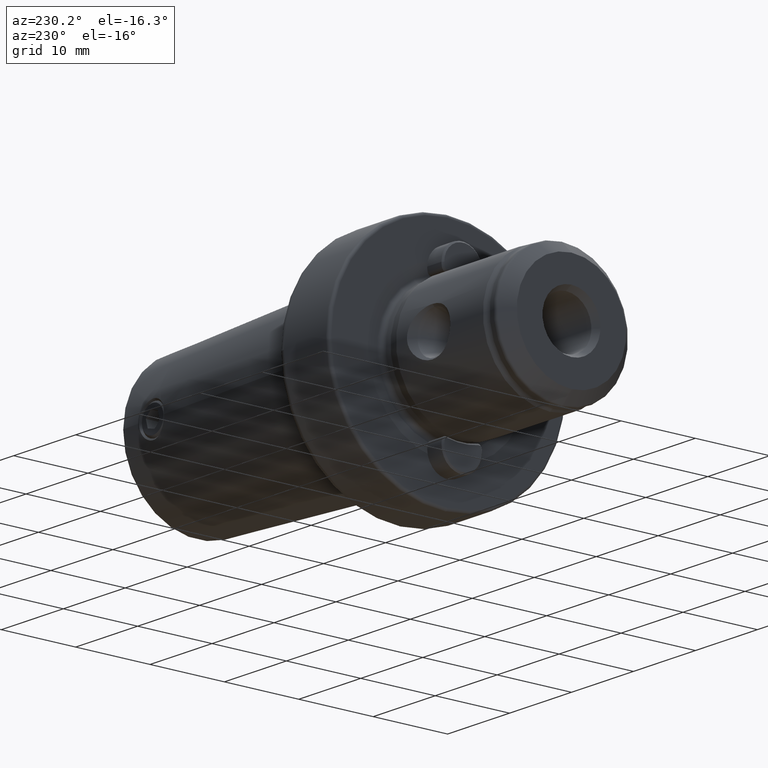
[diagram: clean part render]
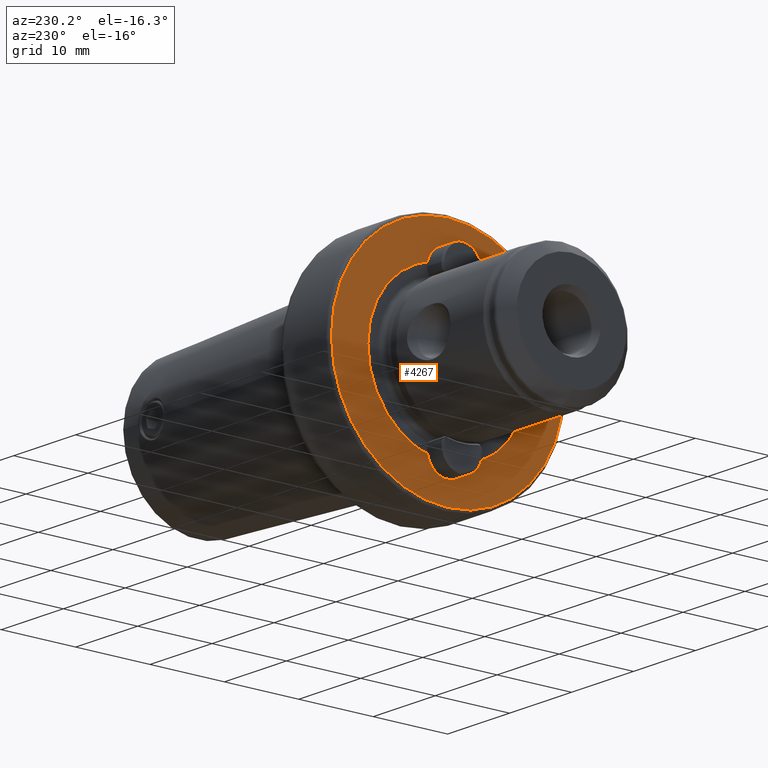
[diagram: same view with one face highlighted and labeled with its STEP entity id]
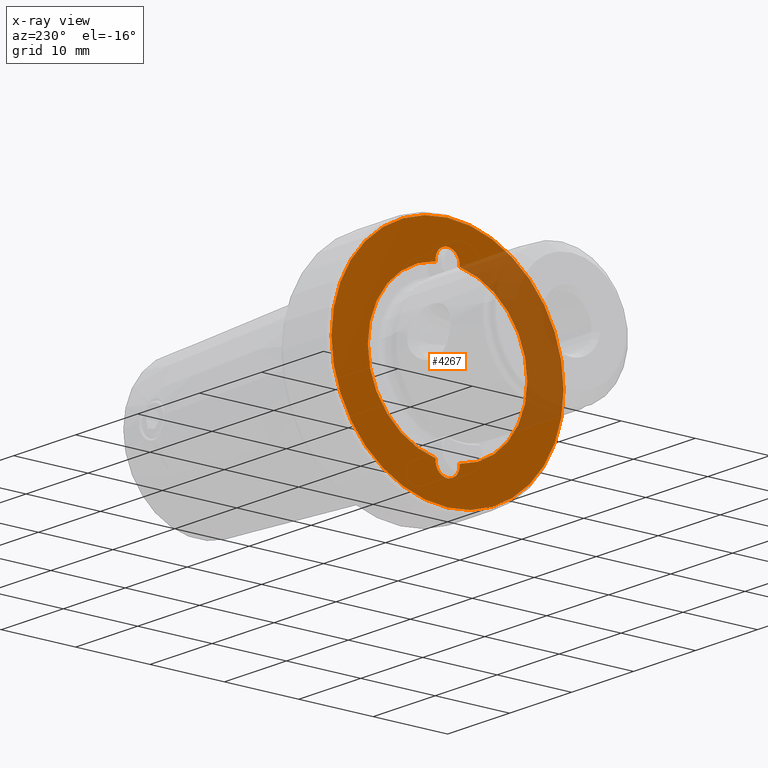
[diagram: x-ray of the same camera — body ghosted, the highlighted face saturated]
A machine part, auxiliary view. The second image highlights one B-rep face of the part: STEP entity #4267.
The next image is the same camera in x-ray: the body ghosted, the highlighted face saturated — about 25% of this face is hidden behind the body in this view.
In plain terms, the highlighted planar face has unit normal (1, 0, 0).
Its self-contained STEP definition (entity closure, byte-faithful):
#56 = CARTESIAN_POINT ( 'NONE',  ( 0.0000000000000000000, -1.580013975531185700, -10.59789716953961600 ) ) ;
#103 = CARTESIAN_POINT ( 'NONE',  ( 0.0000000000000000000, 0.0000000000000000000, 12.45000000000000100 ) ) ;
#137 = DIRECTION ( 'NONE',  ( 0.0000000000000000000, 0.0000000000000000000, 1.000000000000000000 ) ) ;
#148 = DIRECTION ( 'NONE',  ( -1.000000000000000000, -0.0000000000000000000, -0.0000000000000000000 ) ) ;
#154 = CARTESIAN_POINT ( 'NONE',  ( 0.0000000000000000000, -5.204170427930421300E-015, 0.0000000000000000000 ) ) ;
#402 = EDGE_CURVE ( 'NONE', #4648, #3278, #430, .T. ) ;
#430 = CIRCLE ( 'NONE', #4842, 1.600000000000000800 ) ;
#597 = CIRCLE ( 'NONE', #878, 15.60000000000000000 ) ;
#734 = DIRECTION ( 'NONE',  ( 0.0000000000000000000, 0.0000000000000000000, 1.000000000000000000 ) ) ;
#824 = DIRECTION ( 'NONE',  ( -1.000000000000000000, -0.0000000000000000000, -0.0000000000000000000 ) ) ;
#837 = CARTESIAN_POINT ( 'NONE',  ( 0.0000000000000000000, -5.204170427930421300E-015, 0.0000000000000000000 ) ) ;
#838 = CIRCLE ( 'NONE', #1570, 1.600000000000000800 ) ;
#878 = AXIS2_PLACEMENT_3D ( 'NONE', #154, #148, #137 ) ;
#883 = CARTESIAN_POINT ( 'NONE',  ( 0.0000000000000000000, -1.580013975531185900, 10.59789716953961600 ) ) ;
#1014 = CIRCLE ( 'NONE', #1770, 1.600000000000000800 ) ;
#1121 = VERTEX_POINT ( 'NONE', #4248 ) ;
#1143 = AXIS2_PLACEMENT_3D ( 'NONE', #2131, #2100, #2088 ) ;
#1341 = CIRCLE ( 'NONE', #3880, 1.600000000000000800 ) ;
#1397 = CARTESIAN_POINT ( 'NONE',  ( 0.0000000000000000000, 1.580013975531185700, -10.59789716953961400 ) ) ;
#1446 = CIRCLE ( 'NONE', #1143, 15.60000000000000000 ) ;
#1537 = DIRECTION ( 'NONE',  ( 0.0000000000000000000, 0.0000000000000000000, -1.000000000000000000 ) ) ;
#1544 = DIRECTION ( 'NONE',  ( 1.000000000000000000, 0.0000000000000000000, 0.0000000000000000000 ) ) ;
#1570 = AXIS2_PLACEMENT_3D ( 'NONE', #2773, #2753, #2734 ) ;
#1580 = CARTESIAN_POINT ( 'NONE',  ( 0.0000000000000000000, -5.204170427930421300E-015, -10.71503003164291800 ) ) ;
#1593 = PLANE ( 'NONE',  #3964 ) ;
#1656 = VERTEX_POINT ( 'NONE', #1397 ) ;
#1675 = ORIENTED_EDGE ( 'NONE', *, *, #3206, .F. ) ;
#1770 = AXIS2_PLACEMENT_3D ( 'NONE', #3607, #3592, #3575 ) ;
#1864 = ORIENTED_EDGE ( 'NONE', *, *, #2838, .T. ) ;
#2088 = DIRECTION ( 'NONE',  ( 0.0000000000000000000, 0.0000000000000000000, 1.000000000000000000 ) ) ;
#2100 = DIRECTION ( 'NONE',  ( -1.000000000000000000, -0.0000000000000000000, -0.0000000000000000000 ) ) ;
#2108 = DIRECTION ( 'NONE',  ( 0.0000000000000000000, 0.0000000000000000000, 1.000000000000000000 ) ) ;
#2120 = DIRECTION ( 'NONE',  ( -1.000000000000000000, -0.0000000000000000000, -0.0000000000000000000 ) ) ;
#2124 = CARTESIAN_POINT ( 'NONE',  ( 0.0000000000000000000, 0.0000000000000000000, 10.85000000000000000 ) ) ;
#2131 = CARTESIAN_POINT ( 'NONE',  ( 0.0000000000000000000, -5.204170427930421300E-015, 0.0000000000000000000 ) ) ;
#2200 = CIRCLE ( 'NONE', #2905, 10.71503003164291800 ) ;
#2467 = EDGE_CURVE ( 'NONE', #2740, #2874, #1341, .T. ) ;
#2734 = DIRECTION ( 'NONE',  ( 0.0000000000000000000, 0.0000000000000000000, 1.000000000000000000 ) ) ;
#2740 = VERTEX_POINT ( 'NONE', #883 ) ;
#2753 = DIRECTION ( 'NONE',  ( -1.000000000000000000, -0.0000000000000000000, -0.0000000000000000000 ) ) ;
#2773 = CARTESIAN_POINT ( 'NONE',  ( 0.0000000000000000000, 0.0000000000000000000, -10.85000000000000000 ) ) ;
#2838 = EDGE_CURVE ( 'NONE', #3016, #4631, #597, .T. ) ;
#2871 = FACE_OUTER_BOUND ( 'NONE', #4704, .T. ) ;
#2874 = VERTEX_POINT ( 'NONE', #103 ) ;
#2905 = AXIS2_PLACEMENT_3D ( 'NONE', #4190, #4224, #4129 ) ;
#2931 = FACE_BOUND ( 'NONE', #3708, .T. ) ;
#3016 = VERTEX_POINT ( 'NONE', #3898 ) ;
#3062 = ORIENTED_EDGE ( 'NONE', *, *, #4703, .F. ) ;
#3092 = ORIENTED_EDGE ( 'NONE', *, *, #2467, .F. ) ;
#3206 = EDGE_CURVE ( 'NONE', #3278, #2740, #4825, .T. ) ;
#3278 = VERTEX_POINT ( 'NONE', #56 ) ;
#3575 = DIRECTION ( 'NONE',  ( 0.0000000000000000000, 0.0000000000000000000, 1.000000000000000000 ) ) ;
#3592 = DIRECTION ( 'NONE',  ( -1.000000000000000000, -0.0000000000000000000, -0.0000000000000000000 ) ) ;
#3597 = ORIENTED_EDGE ( 'NONE', *, *, #4761, .F. ) ;
#3607 = CARTESIAN_POINT ( 'NONE',  ( 0.0000000000000000000, 0.0000000000000000000, 10.85000000000000000 ) ) ;
#3708 = EDGE_LOOP ( 'NONE', ( #4113, #3062, #3092, #1675, #4926, #3597 ) ) ;
#3880 = AXIS2_PLACEMENT_3D ( 'NONE', #2124, #2120, #2108 ) ;
#3898 = CARTESIAN_POINT ( 'NONE',  ( 0.0000000000000000000, -5.204170427930421300E-015, 15.60000000000000000 ) ) ;
#3964 = AXIS2_PLACEMENT_3D ( 'NONE', #1580, #1544, #1537 ) ;
#4113 = ORIENTED_EDGE ( 'NONE', *, *, #4497, .F. ) ;
#4129 = DIRECTION ( 'NONE',  ( 0.0000000000000000000, 0.0000000000000000000, 1.000000000000000000 ) ) ;
#4190 = CARTESIAN_POINT ( 'NONE',  ( 0.0000000000000000000, -5.204170427930421300E-015, 0.0000000000000000000 ) ) ;
#4224 = DIRECTION ( 'NONE',  ( -1.000000000000000000, -0.0000000000000000000, -0.0000000000000000000 ) ) ;
#4230 = ORIENTED_EDGE ( 'NONE', *, *, #4817, .T. ) ;
#4248 = CARTESIAN_POINT ( 'NONE',  ( 0.0000000000000000000, 1.580013975531007000, 10.59789716953963900 ) ) ;
#4267 = ADVANCED_FACE ( 'NONE', ( #2931, #2871 ), #1593, .F. ) ;
#4457 = CARTESIAN_POINT ( 'NONE',  ( 0.0000000000000000000, 1.959434878635765200E-016, -12.45000000000000100 ) ) ;
#4497 = EDGE_CURVE ( 'NONE', #1121, #1656, #2200, .T. ) ;
#4631 = VERTEX_POINT ( 'NONE', #4819 ) ;
#4648 = VERTEX_POINT ( 'NONE', #4457 ) ;
#4703 = EDGE_CURVE ( 'NONE', #2874, #1121, #1014, .T. ) ;
#4704 = EDGE_LOOP ( 'NONE', ( #1864, #4230 ) ) ;
#4761 = EDGE_CURVE ( 'NONE', #1656, #4648, #838, .T. ) ;
#4802 = CARTESIAN_POINT ( 'NONE',  ( 0.0000000000000000000, 0.0000000000000000000, -10.85000000000000000 ) ) ;
#4815 = DIRECTION ( 'NONE',  ( 0.0000000000000000000, 0.0000000000000000000, 1.000000000000000000 ) ) ;
#4817 = EDGE_CURVE ( 'NONE', #4631, #3016, #1446, .T. ) ;
#4819 = CARTESIAN_POINT ( 'NONE',  ( 0.0000000000000000000, -3.269228485277603300E-015, -15.60000000000000000 ) ) ;
#4825 = CIRCLE ( 'NONE', #4903, 10.71503003164291800 ) ;
#4842 = AXIS2_PLACEMENT_3D ( 'NONE', #4802, #4992, #4815 ) ;
#4903 = AXIS2_PLACEMENT_3D ( 'NONE', #837, #824, #734 ) ;
#4926 = ORIENTED_EDGE ( 'NONE', *, *, #402, .F. ) ;
#4992 = DIRECTION ( 'NONE',  ( -1.000000000000000000, -0.0000000000000000000, -0.0000000000000000000 ) ) ;